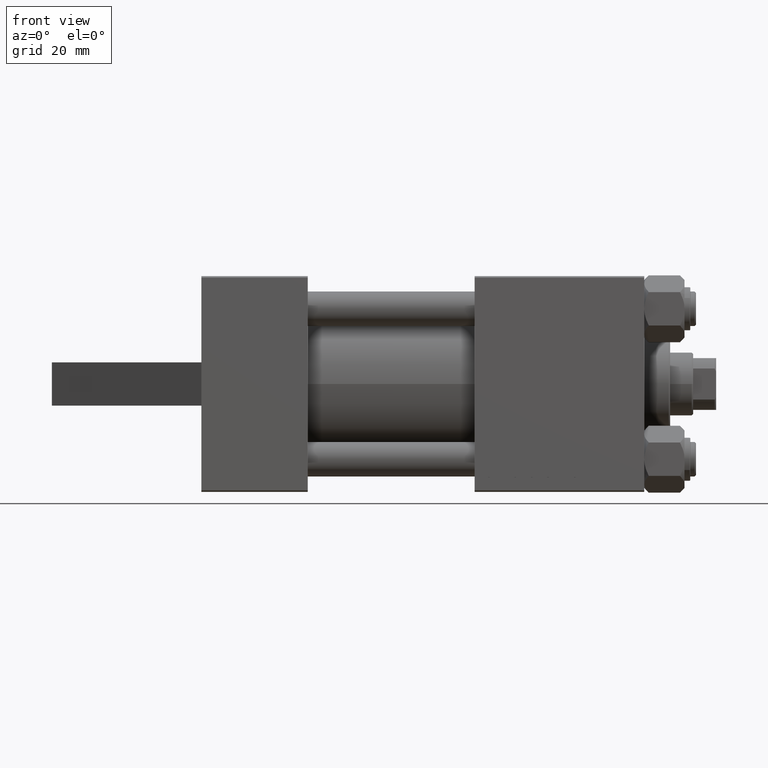
[diagram: clean part render]
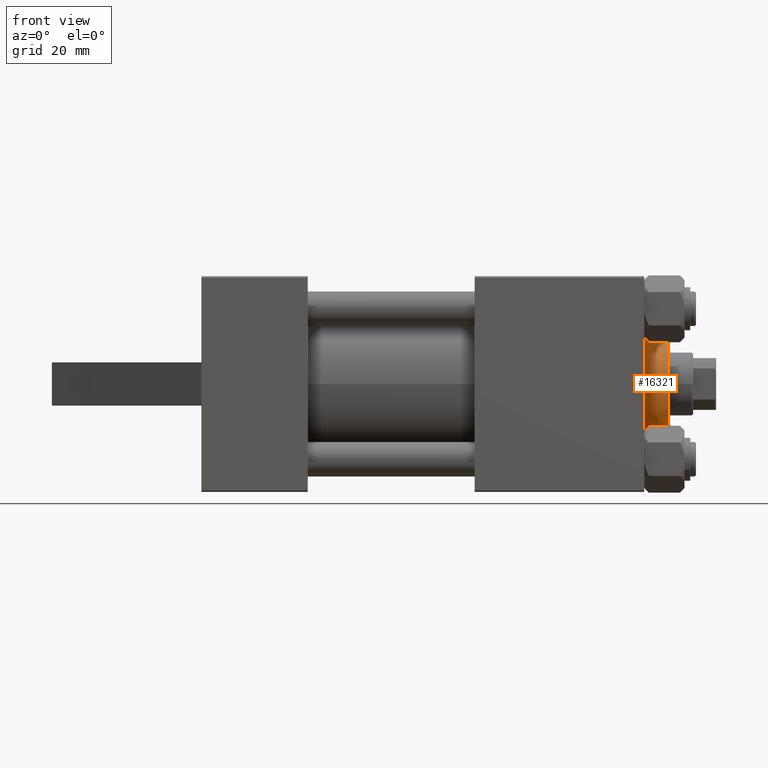
[diagram: same view with one face highlighted and labeled with its STEP entity id]
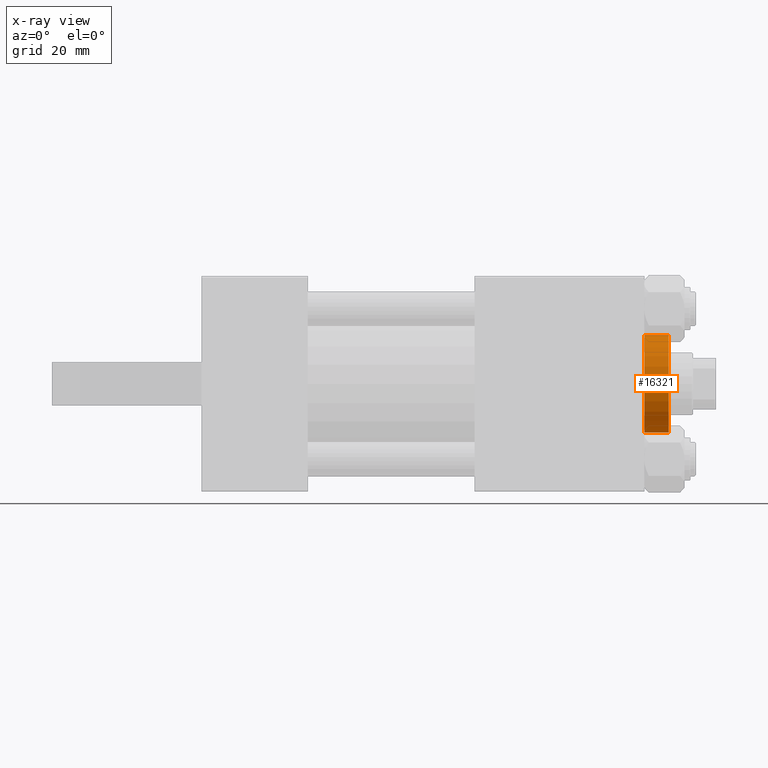
[diagram: x-ray of the same camera — body ghosted, the highlighted face saturated]
A machine part, front view. The second image highlights one B-rep face of the part: STEP entity #16321.
The next image is the same camera in x-ray: the body ghosted, the highlighted face saturated — about 2% of this face is hidden behind the body in this view.
In plain terms, the highlighted cylindrical surface (partial cylindrical patch) has radius 17 mm, axis along (-1, -0, -0).
Its self-contained STEP definition (entity closure, byte-faithful):
#70 = VERTEX_POINT ( 'NONE', #17147 ) ;
#2358 = DIRECTION ( 'NONE',  ( -0.000000000000000000, -0.000000000000000000, -1.000000000000000000 ) ) ;
#2882 = FACE_OUTER_BOUND ( 'NONE', #37843, .T. ) ;
#5766 = CARTESIAN_POINT ( 'NONE',  ( 0.000000000000000000, 0.000000000000000000, 37.19999999999999574 ) ) ;
#6513 = CARTESIAN_POINT ( 'NONE',  ( 17.00000000000000000, 2.081899558550500280E-15, 37.69999999999999574 ) ) ;
#6613 = VECTOR ( 'NONE', #19528, 1000.000000000000000 ) ;
#8492 = ORIENTED_EDGE ( 'NONE', *, *, #36227, .T. ) ;
#9803 = VERTEX_POINT ( 'NONE', #44294 ) ;
#10903 = CIRCLE ( 'NONE', #11643, 17.00000000000000000 ) ;
#11643 = AXIS2_PLACEMENT_3D ( 'NONE', #5766, #13192, #19958 ) ;
#11961 = EDGE_CURVE ( 'NONE', #24419, #9803, #40127, .T. ) ;
#13192 = DIRECTION ( 'NONE',  ( 0.000000000000000000, 0.000000000000000000, -1.000000000000000000 ) ) ;
#14047 = CARTESIAN_POINT ( 'NONE',  ( 0.000000000000000000, 0.000000000000000000, 37.69999999999999574 ) ) ;
#14853 = VERTEX_POINT ( 'NONE', #18741 ) ;
#15703 = AXIS2_PLACEMENT_3D ( 'NONE', #14047, #24074, #31285 ) ;
#16321 = ADVANCED_FACE ( 'NONE', ( #2882 ), #45710, .T. ) ;
#17147 = CARTESIAN_POINT ( 'NONE',  ( -17.00000000000000000, 0.000000000000000000, 37.19999999999999574 ) ) ;
#18741 = CARTESIAN_POINT ( 'NONE',  ( 17.00000000000000000, 2.081899558550500280E-15, 37.19999999999999574 ) ) ;
#19528 = DIRECTION ( 'NONE',  ( -0.000000000000000000, -0.000000000000000000, -1.000000000000000000 ) ) ;
#19958 = DIRECTION ( 'NONE',  ( 1.000000000000000000, 0.000000000000000000, 0.000000000000000000 ) ) ;
#24074 = DIRECTION ( 'NONE',  ( -0.000000000000000000, -0.000000000000000000, -1.000000000000000000 ) ) ;
#24419 = VERTEX_POINT ( 'NONE', #24807 ) ;
#24807 = CARTESIAN_POINT ( 'NONE',  ( -17.00000000000000000, 0.000000000000000000, 28.69999999999999929 ) ) ;
#26906 = ORIENTED_EDGE ( 'NONE', *, *, #11961, .T. ) ;
#26974 = CARTESIAN_POINT ( 'NONE',  ( -17.00000000000000000, 0.000000000000000000, 37.69999999999999574 ) ) ;
#27198 = LINE ( 'NONE', #26974, #6613 ) ;
#27255 = LINE ( 'NONE', #6513, #43662 ) ;
#27890 = CARTESIAN_POINT ( 'NONE',  ( 0.000000000000000000, 0.000000000000000000, 28.69999999999999929 ) ) ;
#31165 = DIRECTION ( 'NONE',  ( 1.000000000000000000, 0.000000000000000000, 0.000000000000000000 ) ) ;
#31285 = DIRECTION ( 'NONE',  ( -1.000000000000000000, 0.000000000000000000, 0.000000000000000000 ) ) ;
#34112 = ORIENTED_EDGE ( 'NONE', *, *, #40234, .F. ) ;
#36227 = EDGE_CURVE ( 'NONE', #14853, #70, #10903, .T. ) ;
#37843 = EDGE_LOOP ( 'NONE', ( #34112, #8492, #37952, #26906 ) ) ;
#37952 = ORIENTED_EDGE ( 'NONE', *, *, #39440, .T. ) ;
#39440 = EDGE_CURVE ( 'NONE', #70, #24419, #27198, .T. ) ;
#40127 = CIRCLE ( 'NONE', #43825, 17.00000000000000000 ) ;
#40234 = EDGE_CURVE ( 'NONE', #14853, #9803, #27255, .T. ) ;
#43662 = VECTOR ( 'NONE', #2358, 1000.000000000000000 ) ;
#43825 = AXIS2_PLACEMENT_3D ( 'NONE', #27890, #45139, #31165 ) ;
#44294 = CARTESIAN_POINT ( 'NONE',  ( 17.00000000000000000, 2.081899558550500280E-15, 28.69999999999999929 ) ) ;
#45139 = DIRECTION ( 'NONE',  ( 0.000000000000000000, 0.000000000000000000, 1.000000000000000000 ) ) ;
#45710 = CYLINDRICAL_SURFACE ( 'NONE', #15703, 17.00000000000000000 ) ;